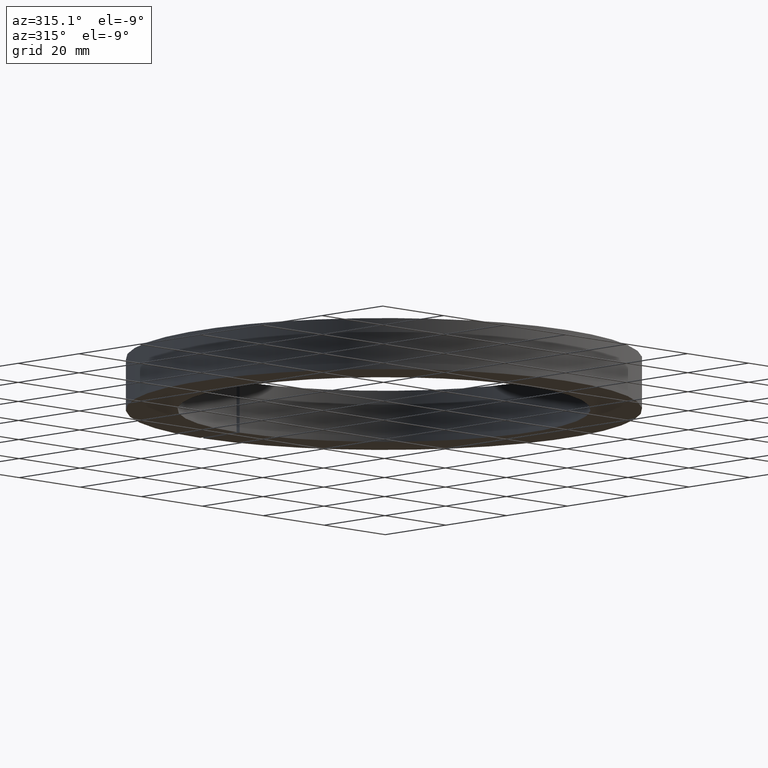
[diagram: clean part render]
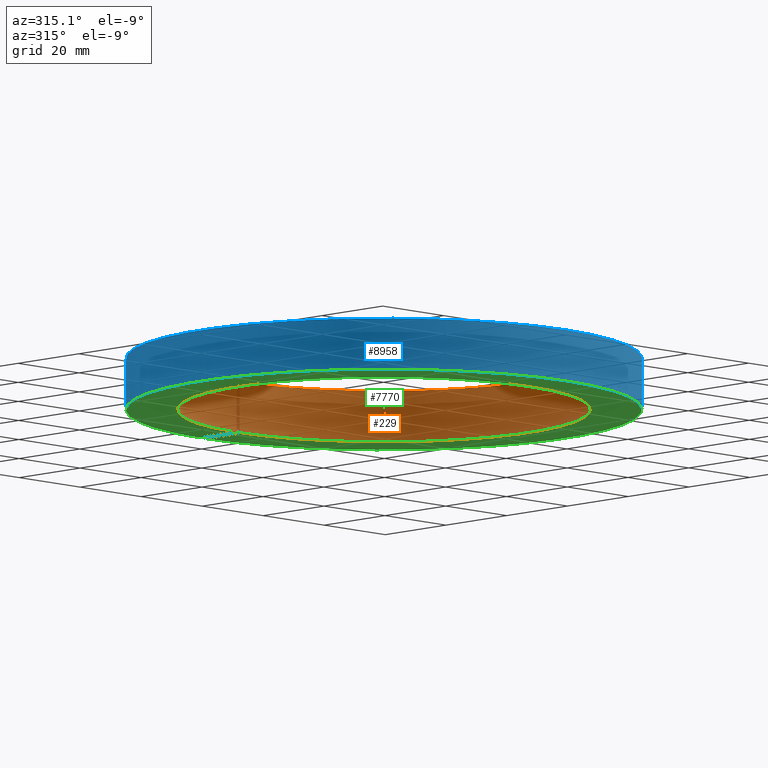
[diagram: same view with three faces highlighted in distinct colors, each labeled with its STEP entity id]
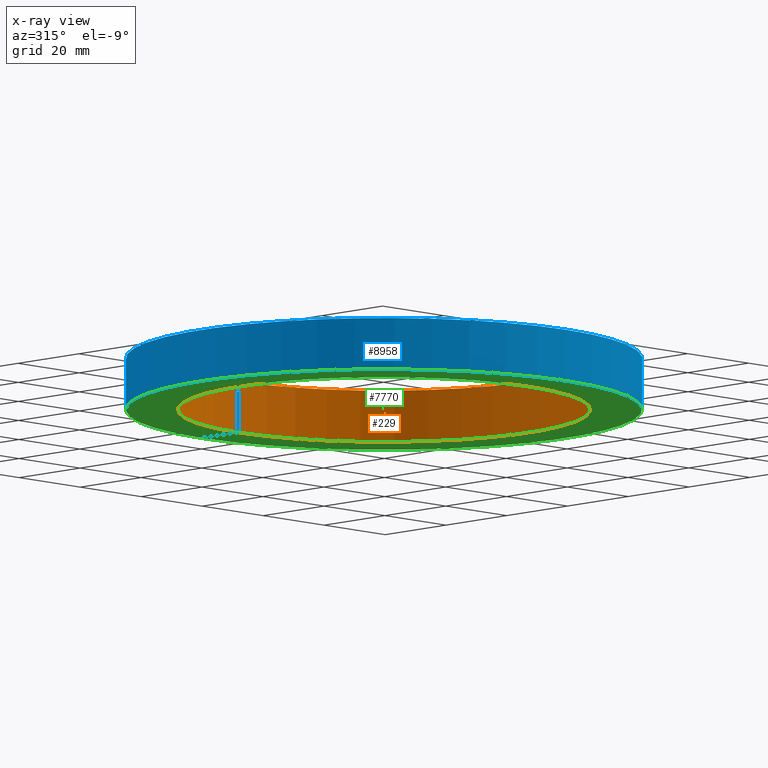
[diagram: x-ray of the same camera — body ghosted, the three highlighted faces saturated]
A machine part, auxiliary view with three faces highlighted in distinct colors.
The next image is the same camera in x-ray (body ghosted, the three faces saturated) — at least one of them is partly hidden behind the body in this view.
Their STEP definitions:

[orange] entity #229 — the highlighted cylindrical surface (partial cylindrical patch) has radius 48 mm, axis along (-0, -0, -1).
#24 = CIRCLE ( 'NONE', #2639, 47.99999999999999300 ) ;
#101 = FACE_OUTER_BOUND ( 'NONE', #9770, .T. ) ;
#221 = ORIENTED_EDGE ( 'NONE', *, *, #6245, .F. ) ;
#229 = ADVANCED_FACE ( 'NONE', ( #101 ), #5007, .F. ) ;
#1118 = CARTESIAN_POINT ( 'NONE',  ( 0.5000000000000000000, 47.99739576268695600, -6.000000000000001800 ) ) ;
#1354 = VERTEX_POINT ( 'NONE', #1118 ) ;
#1416 = DIRECTION ( 'NONE',  ( -1.000000000000000000, 0.0000000000000000000, 0.0000000000000000000 ) ) ;
#1424 = DIRECTION ( 'NONE',  ( -1.000000000000000000, 0.0000000000000000000, 0.0000000000000000000 ) ) ;
#1511 = DIRECTION ( 'NONE',  ( -0.0000000000000000000, -0.0000000000000000000, -1.000000000000000000 ) ) ;
#1650 = CARTESIAN_POINT ( 'NONE',  ( 0.0000000000000000000, 0.0000000000000000000, -6.000000000000001800 ) ) ;
#1790 = VERTEX_POINT ( 'NONE', #9979 ) ;
#2385 = DIRECTION ( 'NONE',  ( -0.0000000000000000000, -0.0000000000000000000, 1.000000000000000000 ) ) ;
#2639 = AXIS2_PLACEMENT_3D ( 'NONE', #1650, #4349, #7125 ) ;
#2865 = CARTESIAN_POINT ( 'NONE',  ( 0.5000000000000000000, 47.99739576268695600, 6.000000000000000900 ) ) ;
#3178 = DIRECTION ( 'NONE',  ( -0.0000000000000000000, -0.0000000000000000000, 1.000000000000000000 ) ) ;
#3249 = EDGE_CURVE ( 'NONE', #1790, #7014, #6689, .T. ) ;
#4349 = DIRECTION ( 'NONE',  ( -0.0000000000000000000, -0.0000000000000000000, -1.000000000000000000 ) ) ;
#4792 = CARTESIAN_POINT ( 'NONE',  ( -0.5000000000000000000, 47.99739576268695600, 6.000000000000000900 ) ) ;
#4925 = CARTESIAN_POINT ( 'NONE',  ( 0.0000000000000000000, 0.0000000000000000000, 0.0000000000000000000 ) ) ;
#5007 = CYLINDRICAL_SURFACE ( 'NONE', #11828, 47.99999999999999300 ) ;
#5126 = DIRECTION ( 'NONE',  ( -0.0000000000000000000, -0.0000000000000000000, -1.000000000000000000 ) ) ;
#5215 = CARTESIAN_POINT ( 'NONE',  ( 0.0000000000000000000, 0.0000000000000000000, 6.000000000000000900 ) ) ;
#6224 = CIRCLE ( 'NONE', #8469, 47.99999999999999300 ) ;
#6245 = EDGE_CURVE ( 'NONE', #1354, #10305, #10942, .T. ) ;
#6381 = EDGE_CURVE ( 'NONE', #1354, #1790, #24, .T. ) ;
#6689 = LINE ( 'NONE', #9834, #7565 ) ;
#6777 = EDGE_CURVE ( 'NONE', #10305, #7014, #6224, .T. ) ;
#7014 = VERTEX_POINT ( 'NONE', #4792 ) ;
#7125 = DIRECTION ( 'NONE',  ( -1.000000000000000000, 0.0000000000000000000, 0.0000000000000000000 ) ) ;
#7544 = VECTOR ( 'NONE', #2385, 1000.000000000000000 ) ;
#7565 = VECTOR ( 'NONE', #3178, 1000.000000000000000 ) ;
#7646 = ORIENTED_EDGE ( 'NONE', *, *, #6777, .F. ) ;
#8469 = AXIS2_PLACEMENT_3D ( 'NONE', #5215, #1511, #1424 ) ;
#8711 = ORIENTED_EDGE ( 'NONE', *, *, #6381, .T. ) ;
#9770 = EDGE_LOOP ( 'NONE', ( #7646, #221, #8711, #11243 ) ) ;
#9834 = CARTESIAN_POINT ( 'NONE',  ( -0.5000000000000000000, 47.99739576268695600, -6.000000000000001800 ) ) ;
#9979 = CARTESIAN_POINT ( 'NONE',  ( -0.5000000000000000000, 47.99739576268695600, -6.000000000000001800 ) ) ;
#10305 = VERTEX_POINT ( 'NONE', #2865 ) ;
#10942 = LINE ( 'NONE', #11668, #7544 ) ;
#11243 = ORIENTED_EDGE ( 'NONE', *, *, #3249, .T. ) ;
#11668 = CARTESIAN_POINT ( 'NONE',  ( 0.5000000000000000000, 47.99739576268695600, -6.000000000000001800 ) ) ;
#11828 = AXIS2_PLACEMENT_3D ( 'NONE', #4925, #5126, #1416 ) ;

[blue] entity #8958 — the highlighted cylindrical surface (partial cylindrical patch) has radius 60 mm, axis along (-0, -0, -1).
#378 = DIRECTION ( 'NONE',  ( -0.0000000000000000000, -0.0000000000000000000, 1.000000000000000000 ) ) ;
#471 = CARTESIAN_POINT ( 'NONE',  ( 0.0000000000000000000, 0.0000000000000000000, -6.000000000000001800 ) ) ;
#641 = LINE ( 'NONE', #6119, #5666 ) ;
#744 = DIRECTION ( 'NONE',  ( -0.0000000000000000000, -0.0000000000000000000, 1.000000000000000000 ) ) ;
#784 = LINE ( 'NONE', #11997, #10658 ) ;
#1855 = EDGE_LOOP ( 'NONE', ( #9021, #4073, #8212, #3286 ) ) ;
#2494 = AXIS2_PLACEMENT_3D ( 'NONE', #5493, #11787, #6342 ) ;
#2598 = AXIS2_PLACEMENT_3D ( 'NONE', #471, #6123, #7044 ) ;
#2759 = VERTEX_POINT ( 'NONE', #3934 ) ;
#2961 = DIRECTION ( 'NONE',  ( -0.0000000000000000000, -0.0000000000000000000, -1.000000000000000000 ) ) ;
#3120 = VERTEX_POINT ( 'NONE', #6532 ) ;
#3195 = CARTESIAN_POINT ( 'NONE',  ( -0.5000000000000000000, 59.99791663049643400, -6.000000000000001800 ) ) ;
#3286 = ORIENTED_EDGE ( 'NONE', *, *, #9129, .F. ) ;
#3711 = EDGE_CURVE ( 'NONE', #2759, #11448, #7405, .T. ) ;
#3883 = CARTESIAN_POINT ( 'NONE',  ( 0.0000000000000000000, 0.0000000000000000000, 5.999999999999998200 ) ) ;
#3934 = CARTESIAN_POINT ( 'NONE',  ( 0.5000000000000000000, 59.99791663049643400, 5.999999999999998200 ) ) ;
#4073 = ORIENTED_EDGE ( 'NONE', *, *, #5002, .T. ) ;
#5002 = EDGE_CURVE ( 'NONE', #3120, #2759, #641, .T. ) ;
#5493 = CARTESIAN_POINT ( 'NONE',  ( 0.0000000000000000000, 0.0000000000000000000, 0.0000000000000000000 ) ) ;
#5666 = VECTOR ( 'NONE', #378, 1000.000000000000000 ) ;
#5909 = CARTESIAN_POINT ( 'NONE',  ( -0.5000000000000000000, 59.99791663049642700, 6.000000000000000900 ) ) ;
#6119 = CARTESIAN_POINT ( 'NONE',  ( 0.5000000000000000000, 59.99791663049642700, -6.000000000000001800 ) ) ;
#6123 = DIRECTION ( 'NONE',  ( -0.0000000000000000000, -0.0000000000000000000, -1.000000000000000000 ) ) ;
#6342 = DIRECTION ( 'NONE',  ( -1.000000000000000000, 0.0000000000000000000, 0.0000000000000000000 ) ) ;
#6413 = CYLINDRICAL_SURFACE ( 'NONE', #2494, 60.00000000000000000 ) ;
#6532 = CARTESIAN_POINT ( 'NONE',  ( 0.5000000000000000000, 59.99791663049642700, -6.000000000000001800 ) ) ;
#7044 = DIRECTION ( 'NONE',  ( -1.000000000000000000, 0.0000000000000000000, 0.0000000000000000000 ) ) ;
#7405 = CIRCLE ( 'NONE', #11679, 60.00000000000000000 ) ;
#8212 = ORIENTED_EDGE ( 'NONE', *, *, #3711, .T. ) ;
#8931 = FACE_OUTER_BOUND ( 'NONE', #1855, .T. ) ;
#8958 = ADVANCED_FACE ( 'NONE', ( #8931 ), #6413, .T. ) ;
#9021 = ORIENTED_EDGE ( 'NONE', *, *, #11717, .F. ) ;
#9129 = EDGE_CURVE ( 'NONE', #12195, #11448, #784, .T. ) ;
#9535 = DIRECTION ( 'NONE',  ( -1.000000000000000000, 0.0000000000000000000, 0.0000000000000000000 ) ) ;
#10658 = VECTOR ( 'NONE', #744, 1000.000000000000000 ) ;
#10707 = CIRCLE ( 'NONE', #2598, 60.00000000000000000 ) ;
#11448 = VERTEX_POINT ( 'NONE', #5909 ) ;
#11679 = AXIS2_PLACEMENT_3D ( 'NONE', #3883, #2961, #9535 ) ;
#11717 = EDGE_CURVE ( 'NONE', #3120, #12195, #10707, .T. ) ;
#11787 = DIRECTION ( 'NONE',  ( -0.0000000000000000000, -0.0000000000000000000, -1.000000000000000000 ) ) ;
#11997 = CARTESIAN_POINT ( 'NONE',  ( -0.5000000000000000000, 59.99791663049642700, -6.000000000000001800 ) ) ;
#12195 = VERTEX_POINT ( 'NONE', #3195 ) ;

[green] entity #7770 — the highlighted planar face has unit normal (0, 0, 1).
#24 = CIRCLE ( 'NONE', #2639, 47.99999999999999300 ) ;
#266 = LINE ( 'NONE', #6648, #11893 ) ;
#431 = ORIENTED_EDGE ( 'NONE', *, *, #10185, .T. ) ;
#471 = CARTESIAN_POINT ( 'NONE',  ( 0.0000000000000000000, 0.0000000000000000000, -6.000000000000001800 ) ) ;
#847 = CARTESIAN_POINT ( 'NONE',  ( 0.0000000000000000000, -47.99999999999999300, -6.000000000000001800 ) ) ;
#1118 = CARTESIAN_POINT ( 'NONE',  ( 0.5000000000000000000, 47.99739576268695600, -6.000000000000001800 ) ) ;
#1303 = CARTESIAN_POINT ( 'NONE',  ( 0.5000000000000000000, 0.0000000000000000000, -6.000000000000001800 ) ) ;
#1354 = VERTEX_POINT ( 'NONE', #1118 ) ;
#1650 = CARTESIAN_POINT ( 'NONE',  ( 0.0000000000000000000, 0.0000000000000000000, -6.000000000000001800 ) ) ;
#1690 = DIRECTION ( 'NONE',  ( 1.000000000000000000, 0.0000000000000000000, -0.0000000000000000000 ) ) ;
#1790 = VERTEX_POINT ( 'NONE', #9979 ) ;
#1917 = ORIENTED_EDGE ( 'NONE', *, *, #6381, .F. ) ;
#2598 = AXIS2_PLACEMENT_3D ( 'NONE', #471, #6123, #7044 ) ;
#2639 = AXIS2_PLACEMENT_3D ( 'NONE', #1650, #4349, #7125 ) ;
#3120 = VERTEX_POINT ( 'NONE', #6532 ) ;
#3195 = CARTESIAN_POINT ( 'NONE',  ( -0.5000000000000000000, 59.99791663049643400, -6.000000000000001800 ) ) ;
#3530 = PLANE ( 'NONE',  #8225 ) ;
#3568 = FACE_OUTER_BOUND ( 'NONE', #9288, .T. ) ;
#4349 = DIRECTION ( 'NONE',  ( -0.0000000000000000000, -0.0000000000000000000, -1.000000000000000000 ) ) ;
#4634 = DIRECTION ( 'NONE',  ( 0.0000000000000000000, 1.000000000000000000, -0.0000000000000000000 ) ) ;
#5889 = VECTOR ( 'NONE', #6080, 1000.000000000000000 ) ;
#6080 = DIRECTION ( 'NONE',  ( 0.0000000000000000000, 1.000000000000000000, -0.0000000000000000000 ) ) ;
#6123 = DIRECTION ( 'NONE',  ( -0.0000000000000000000, -0.0000000000000000000, -1.000000000000000000 ) ) ;
#6381 = EDGE_CURVE ( 'NONE', #1354, #1790, #24, .T. ) ;
#6532 = CARTESIAN_POINT ( 'NONE',  ( 0.5000000000000000000, 59.99791663049642700, -6.000000000000001800 ) ) ;
#6648 = CARTESIAN_POINT ( 'NONE',  ( -0.5000000000000000000, 0.0000000000000000000, -6.000000000000001800 ) ) ;
#7044 = DIRECTION ( 'NONE',  ( -1.000000000000000000, 0.0000000000000000000, 0.0000000000000000000 ) ) ;
#7125 = DIRECTION ( 'NONE',  ( -1.000000000000000000, 0.0000000000000000000, 0.0000000000000000000 ) ) ;
#7292 = DIRECTION ( 'NONE',  ( 0.0000000000000000000, 0.0000000000000000000, 1.000000000000000000 ) ) ;
#7747 = ORIENTED_EDGE ( 'NONE', *, *, #11717, .T. ) ;
#7770 = ADVANCED_FACE ( 'NONE', ( #3568 ), #3530, .F. ) ;
#8225 = AXIS2_PLACEMENT_3D ( 'NONE', #847, #7292, #1690 ) ;
#8837 = ORIENTED_EDGE ( 'NONE', *, *, #10099, .F. ) ;
#9288 = EDGE_LOOP ( 'NONE', ( #1917, #431, #7747, #8837 ) ) ;
#9979 = CARTESIAN_POINT ( 'NONE',  ( -0.5000000000000000000, 47.99739576268695600, -6.000000000000001800 ) ) ;
#10099 = EDGE_CURVE ( 'NONE', #1790, #12195, #266, .T. ) ;
#10185 = EDGE_CURVE ( 'NONE', #1354, #3120, #12187, .T. ) ;
#10707 = CIRCLE ( 'NONE', #2598, 60.00000000000000000 ) ;
#11717 = EDGE_CURVE ( 'NONE', #3120, #12195, #10707, .T. ) ;
#11893 = VECTOR ( 'NONE', #4634, 1000.000000000000000 ) ;
#12187 = LINE ( 'NONE', #1303, #5889 ) ;
#12195 = VERTEX_POINT ( 'NONE', #3195 ) ;